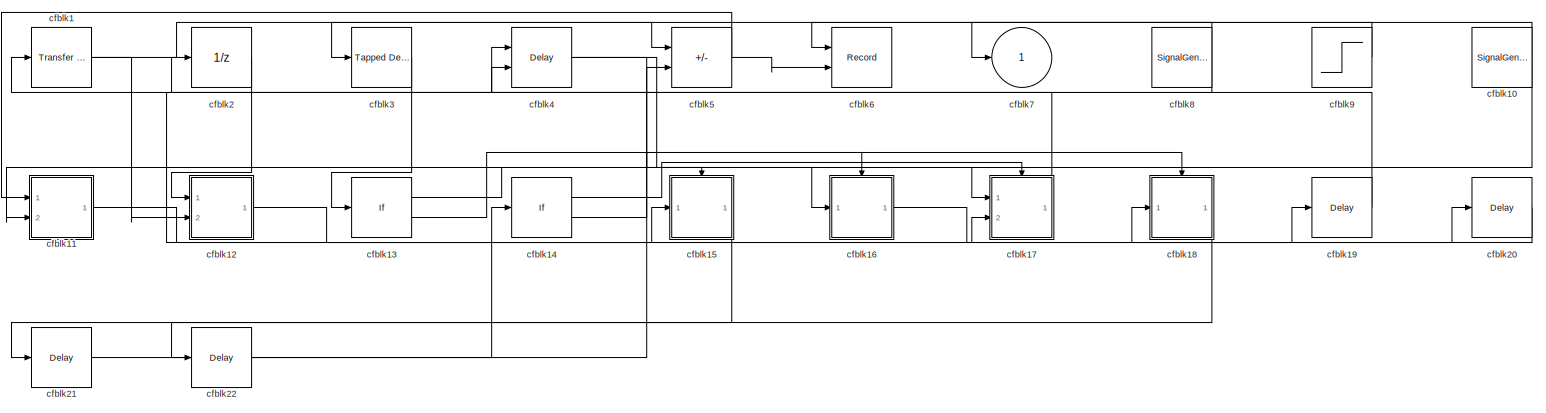
[diagram: root canvas - part 1/1, most of the canvas]
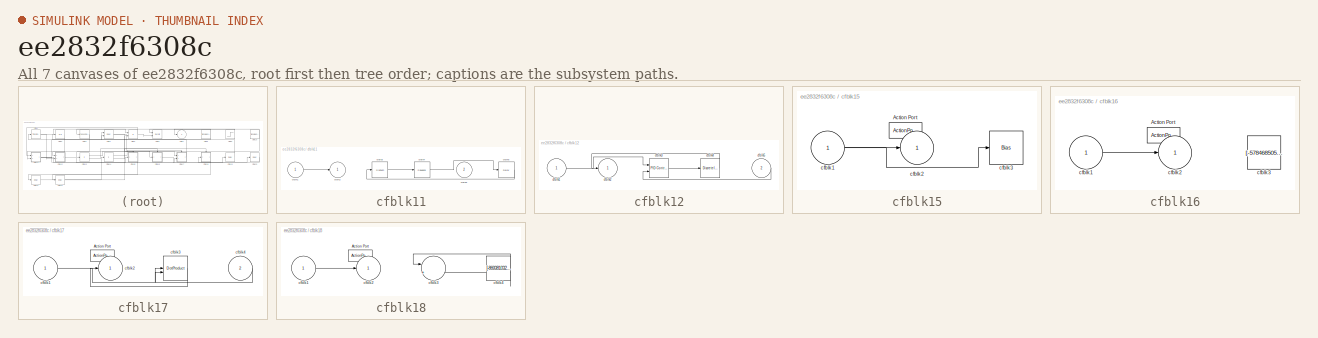
[diagram: thumbnail index - all 7 canvases of the model, root first then tree order]
MODEL slx_ee2832f6308c
KIND model
CONFIG AbsTol = auto
CONFIG EnableMultiTasking = off
CONFIG FixedStep = auto
CONFIG MaxStep = auto
CONFIG MinStep = auto
CONFIG RelTol = 1e-3
CONFIG SampleTimeConstraint = Unconstrained
CONFIG SolverName = VariableStepAuto
CONFIG StartTime = 0.0
CONFIG StopTime = 10.0
BLOCK [Reference] cfblk1  REF=simulink/Discrete/Transfer Fcn
Lead or Lag
  Ports = [1, 1]
  SourceBlock = simulink/Discrete/Transfer Fcn\nLead or Lag
  SourceProductBaseCode = SL
  SourceType = Lead or Lag Compensator
BLOCK [SignalGenerator] cfblk10
  Amplitude = [-561163513.229402]
  Ports = [0, 1]
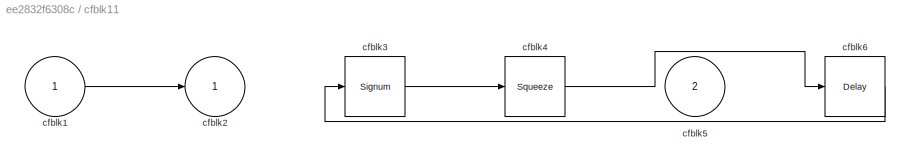
BLOCK [SubSystem] cfblk11
  Ports = [2, 1]
  RequestExecContextInheritance = off
BLOCK [Inport] cfblk11/cfblk1
BLOCK [Outport] cfblk11/cfblk2
BLOCK [Signum] cfblk11/cfblk3
BLOCK [Squeeze] cfblk11/cfblk4
BLOCK [Inport] cfblk11/cfblk5
  Port = 2
BLOCK [Delay] cfblk11/cfblk6
  InputPortMap = u0
  Ports = [1, 1]
  SampleTime = 1
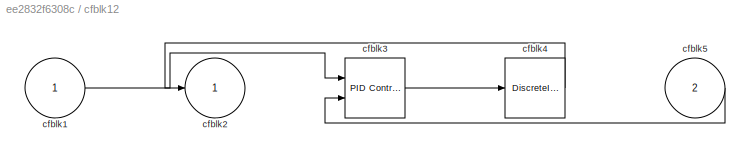
BLOCK [SubSystem] cfblk12
  Ports = [2, 1]
  RequestExecContextInheritance = off
BLOCK [Inport] cfblk12/cfblk1
BLOCK [Outport] cfblk12/cfblk2
BLOCK [Reference] cfblk12/cfblk3  REF=slpidlib/PID Controller (2DOF)
  Ports = [2, 1]
  SourceBlock = slpidlib/PID Controller (2DOF)
  SourceProductBaseCode = SL
  SourceType = PID 2dof
BLOCK [DiscreteIntegrator] cfblk12/cfblk4
  ICPrevOutput = DiscIntNeverNeededParam
  ICPrevScaledInput = DiscIntNeverNeededParam
  InitialConditionSetting = Auto
  Ports = [1, 1]
BLOCK [Inport] cfblk12/cfblk5
  Port = 2
BLOCK [If] cfblk13
  IfExpression = u1 >= 0
  Ports = [1, 2]
  SampleTime = 1
BLOCK [If] cfblk14
  IfExpression = u1 >= 0
  Ports = [1, 2]
  SampleTime = 1
BLOCK [SubSystem] cfblk15
  Ports = [1, 1, 0, 0, 0, 0, 0, 1]
  RequestExecContextInheritance = off
  TreatAsAtomicUnit = on
BLOCK [ActionPort] cfblk15/Action Port
  ActionPortLabel = if(u1 >= 0)
BLOCK [Inport] cfblk15/cfblk1
BLOCK [Outport] cfblk15/cfblk2
BLOCK [Bias] cfblk15/cfblk3
  Bias = [-963229721.964450]
  SaturateOnIntegerOverflow = off
BLOCK [SubSystem] cfblk16
  Ports = [1, 1, 0, 0, 0, 0, 0, 1]
  RequestExecContextInheritance = off
  TreatAsAtomicUnit = on
BLOCK [ActionPort] cfblk16/Action Port
  ActionPortLabel = else
BLOCK [Inport] cfblk16/cfblk1
BLOCK [Outport] cfblk16/cfblk2
BLOCK [Constant] cfblk16/cfblk3
  SampleTime = 1
  Value = [-578468505.638631]
BLOCK [SubSystem] cfblk17
  Ports = [2, 1, 0, 0, 0, 0, 0, 1]
  RequestExecContextInheritance = off
  TreatAsAtomicUnit = on
BLOCK [ActionPort] cfblk17/Action Port
  ActionPortLabel = if(u1 >= 0)
BLOCK [Inport] cfblk17/cfblk1
BLOCK [Outport] cfblk17/cfblk2
BLOCK [DotProduct] cfblk17/cfblk3
  OutDataTypeStr = Inherit: Inherit via internal rule
BLOCK [Inport] cfblk17/cfblk4
  Port = 2
BLOCK [SubSystem] cfblk18
  Ports = [1, 1, 0, 0, 0, 0, 0, 1]
  RequestExecContextInheritance = off
  TreatAsAtomicUnit = on
BLOCK [ActionPort] cfblk18/Action Port
  ActionPortLabel = else
BLOCK [Inport] cfblk18/cfblk1
BLOCK [Outport] cfblk18/cfblk2
BLOCK [Sum] cfblk18/cfblk3
  Inputs = |++
  Ports = [2, 1]
BLOCK [Constant] cfblk18/cfblk4
  SampleTime = 1
  Value = [-869381032.438283]
BLOCK [Delay] cfblk19
  InputPortMap = u0
  Ports = [1, 1]
  SampleTime = 1
BLOCK [UnitDelay] cfblk2
  HasFrameUpgradeWarning = on
BLOCK [Delay] cfblk20
  InputPortMap = u0
  Ports = [1, 1]
  SampleTime = 1
BLOCK [Delay] cfblk21
  InputPortMap = u0
  Ports = [1, 1]
  SampleTime = 1
BLOCK [Delay] cfblk22
  InputPortMap = u0
  Ports = [1, 1]
  SampleTime = 1
BLOCK [Reference] cfblk3  REF=simulink/Discrete/Tapped Delay
  Ports = [1, 1]
  SourceBlock = simulink/Discrete/Tapped Delay
  SourceProductBaseCode = SL
  SourceType = Tapped Delay Line
BLOCK [Delay] cfblk4
  InputPortMap = u0,e6
  Ports = [2, 1]
  SampleTime = 1
  ShowEnablePort = on
BLOCK [Sum] cfblk5
  IconShape = rectangular
  Inputs = -+
  Ports = [2, 1]
BLOCK [Record] cfblk6
  CompatibilityTag = XY
  FileSettingsInternal = {"entries":[{"content":{"excelSettings":{"content":{},"type":"Streamout.ExcelSettings"}},"type":"Streamout.FileSettingStorage","uuid":"f1a0f000-2296-4a30-a2fb-37dceaaf61a7"}],"packageUris":["http://schema.mathworks.com/mf0/streamout_blocks/R2020a"],"version":"1.0"}
  Layout = [1 1]
  Ports = [2]
  SignalsInternal = {"entries":[{"content":{"signals":[{"content":{"blockPath":["sampleModel157/cfblk6"],"channel":[],"dimensions":[1],"domain":"sampleModel157/cfblk6","lineColor":"#a2142f","plots":[1],"port":1,"sid":[""],"signalID":5897,"signalName":"cfblk10"},"type":"RecordBlkView.Signal","uuid":"b71fa848-9967-4e10-a2a2-220d8702d3be"},{"content":{"blockPath":["sampleModel157/cfblk6"],"channel":[],"dimensions":[1],"...<+378ch>
  VisualizationBindings = {"xyplotplugin":{"info":[{"series":[{"bindingParametersList":[{"parameter":"X-Axis","signalID":5897,"signalName":"cfblk10"},{"parameter":"Y-Axis","signalID":5901,"signalName":"cfblk5"}],"seriesID":20250}],"subplotID":1}]}}
BLOCK [Outport] cfblk7
BLOCK [SignalGenerator] cfblk8
  Amplitude = [-965560034.396820]
  Ports = [0, 1]
BLOCK [Step] cfblk9
  After = [717651155.671574]
  Before = [224960689.387306]
  SampleTime = 0
  Time = [11.000000]
NET cfblk10:1 -> cfblk11:2, cfblk6:1
LINE cfblk11/cfblk1:1 -> cfblk11/cfblk2:1
LINE cfblk11/cfblk3:1 -> cfblk11/cfblk4:1
LINE cfblk11/cfblk4:1 -> cfblk11/cfblk6:1
LINE cfblk11/cfblk6:1 -> cfblk11/cfblk3:1
NET cfblk11:1 -> cfblk15:1, cfblk17:2, cfblk4:2
LINE cfblk12/cfblk1:1 -> cfblk12/cfblk3:1
LINE cfblk12/cfblk3:1 -> cfblk12/cfblk4:1
LINE cfblk12/cfblk4:1 -> cfblk12/cfblk2:1
LINE cfblk12/cfblk5:1 -> cfblk12/cfblk3:2
LINE cfblk12:1 -> cfblk20:1
LINE cfblk13:1 -> cfblk15:ifaction
LINE cfblk13:2 -> cfblk16:ifaction
LINE cfblk14:1 -> cfblk17:ifaction
LINE cfblk14:2 -> cfblk18:ifaction
NET cfblk15/cfblk1:1 -> cfblk15/cfblk2:1, cfblk15/cfblk3:1
LINE cfblk15:1 -> cfblk22:1
LINE cfblk16/cfblk1:1 -> cfblk16/cfblk2:1
LINE cfblk16:1 -> cfblk19:1
LINE cfblk17/cfblk1:1 -> cfblk17/cfblk3:1
LINE cfblk17/cfblk3:1 -> cfblk17/cfblk2:1
LINE cfblk17/cfblk4:1 -> cfblk17/cfblk3:2
LINE cfblk17:1 -> cfblk2:1
LINE cfblk18/cfblk1:1 -> cfblk18/cfblk2:1
NET cfblk18/cfblk4:1 -> cfblk18/cfblk3:1, cfblk18/cfblk3:2
LINE cfblk18:1 -> cfblk21:1
LINE cfblk19:1 -> cfblk1:1
NET cfblk1:1 -> cfblk12:2, cfblk5:1
LINE cfblk20:1 -> cfblk18:1
LINE cfblk21:1 -> cfblk14:1
LINE cfblk22:1 -> cfblk5:2
LINE cfblk2:1 -> cfblk12:1
LINE cfblk3:1 -> cfblk13:1
NET cfblk4:1 -> cfblk16:1, cfblk17:1
NET cfblk5:1 -> cfblk11:1, cfblk6:2
NET cfblk8:1 -> cfblk3:1, cfblk4:1
LINE cfblk9:1 -> cfblk7:1
note: NET lines group one-source signal fan-out (src -> all destinations, sorted); 1:1 wires keep LINE
